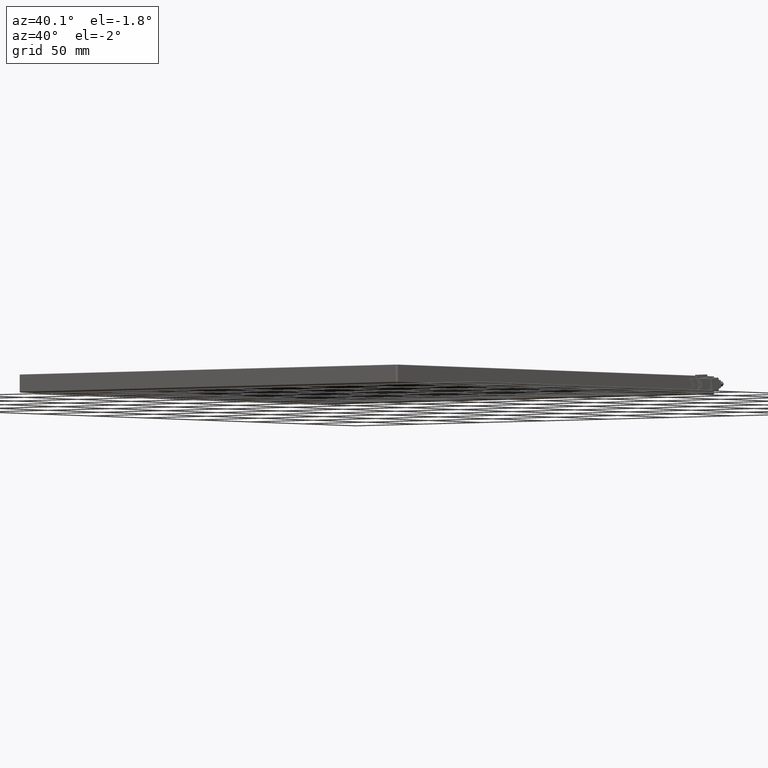
[diagram: clean part render]
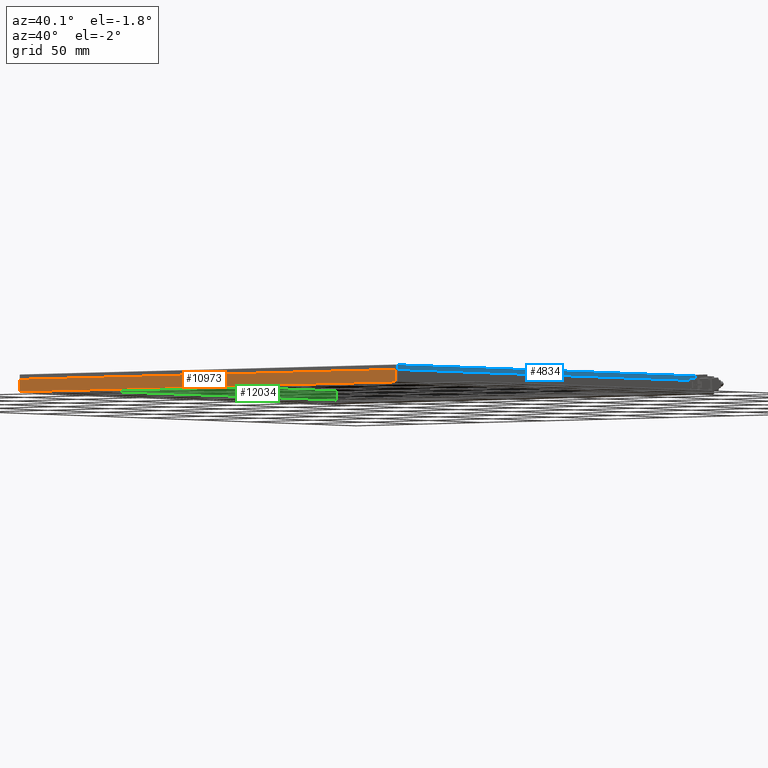
[diagram: same view with three faces highlighted in distinct colors, each labeled with its STEP entity id]
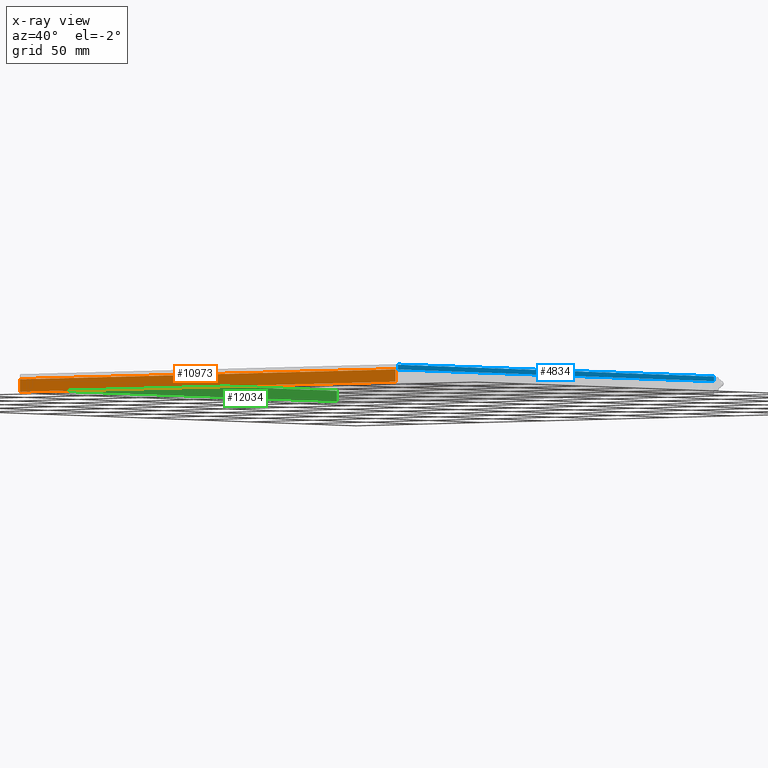
[diagram: x-ray of the same camera — body ghosted, the three highlighted faces saturated]
A machine part, auxiliary view with three faces highlighted in distinct colors.
The next image is the same camera in x-ray (body ghosted, the three faces saturated) — at least one of them is partly hidden behind the body in this view.
Their STEP definitions:

[orange] entity #10973 — the highlighted planar face has unit normal (0, 1, 0).
#39 = VERTEX_POINT ( 'NONE', #11721 ) ;
#536 = ORIENTED_EDGE ( 'NONE', *, *, #8621, .F. ) ;
#1369 = ORIENTED_EDGE ( 'NONE', *, *, #18091, .T. ) ;
#1799 = LINE ( 'NONE', #6593, #16928 ) ;
#2083 = EDGE_CURVE ( 'NONE', #15672, #17129, #12516, .T. ) ;
#2215 = DIRECTION ( 'NONE',  ( -1.000000000000000000, 0.0000000000000000000, -0.0000000000000000000 ) ) ;
#3235 = CARTESIAN_POINT ( 'NONE',  ( 119.2726522842640100, -110.5461928934010600, -2.500000000000069700 ) ) ;
#4533 = LINE ( 'NONE', #10989, #7926 ) ;
#4767 = FACE_OUTER_BOUND ( 'NONE', #12832, .T. ) ;
#4927 = VECTOR ( 'NONE', #11149, 1000.000000000000000 ) ;
#5720 = DIRECTION ( 'NONE',  ( 0.0000000000000000000, 1.000000000000000000, 0.0000000000000000000 ) ) ;
#6593 = CARTESIAN_POINT ( 'NONE',  ( -178.7273477157360400, -110.5461928934010600, 4.999999999999931600 ) ) ;
#6723 = ORIENTED_EDGE ( 'NONE', *, *, #2083, .F. ) ;
#6990 = CARTESIAN_POINT ( 'NONE',  ( -178.7273477157360400, -110.5461928934010700, -2.500000000000066600 ) ) ;
#7769 = AXIS2_PLACEMENT_3D ( 'NONE', #14509, #5720, #16010 ) ;
#7926 = VECTOR ( 'NONE', #2215, 1000.000000000000000 ) ;
#7976 = VERTEX_POINT ( 'NONE', #8748 ) ;
#8579 = VECTOR ( 'NONE', #13313, 1000.000000000000000 ) ;
#8597 = PLANE ( 'NONE',  #7769 ) ;
#8621 = EDGE_CURVE ( 'NONE', #7976, #15672, #16635, .T. ) ;
#8748 = CARTESIAN_POINT ( 'NONE',  ( 119.2726522842639000, -110.5461928934010600, 4.999999999999931600 ) ) ;
#9867 = ORIENTED_EDGE ( 'NONE', *, *, #13656, .F. ) ;
#10973 = ADVANCED_FACE ( 'NONE', ( #4767 ), #8597, .F. ) ;
#10989 = CARTESIAN_POINT ( 'NONE',  ( -179.7273477157360400, -110.5461928934010600, 4.999999999999931600 ) ) ;
#11149 = DIRECTION ( 'NONE',  ( -0.0000000000000000000, 0.0000000000000000000, -1.000000000000000000 ) ) ;
#11721 = CARTESIAN_POINT ( 'NONE',  ( -178.7273477157360400, -110.5461928934010600, 4.999999999999931600 ) ) ;
#12516 = LINE ( 'NONE', #15916, #8579 ) ;
#12539 = DIRECTION ( 'NONE',  ( 0.0000000000000000000, -0.0000000000000000000, 1.000000000000000000 ) ) ;
#12832 = EDGE_LOOP ( 'NONE', ( #6723, #536, #1369, #9867 ) ) ;
#13313 = DIRECTION ( 'NONE',  ( -1.000000000000000000, -0.0000000000000000000, -0.0000000000000000000 ) ) ;
#13656 = EDGE_CURVE ( 'NONE', #17129, #39, #1799, .T. ) ;
#14509 = CARTESIAN_POINT ( 'NONE',  ( -179.7273477157360400, -110.5461928934010600, 4.999999999999931600 ) ) ;
#15611 = CARTESIAN_POINT ( 'NONE',  ( 119.2726522842639000, -110.5461928934010600, 4.999999999999931600 ) ) ;
#15672 = VERTEX_POINT ( 'NONE', #3235 ) ;
#15916 = CARTESIAN_POINT ( 'NONE',  ( -179.7273477157360400, -110.5461928934010600, -2.500000000000067900 ) ) ;
#16010 = DIRECTION ( 'NONE',  ( 0.0000000000000000000, -0.0000000000000000000, 1.000000000000000000 ) ) ;
#16635 = LINE ( 'NONE', #15611, #4927 ) ;
#16928 = VECTOR ( 'NONE', #12539, 1000.000000000000000 ) ;
#17129 = VERTEX_POINT ( 'NONE', #6990 ) ;
#18091 = EDGE_CURVE ( 'NONE', #7976, #39, #4533, .T. ) ;

[blue] entity #4834 — the highlighted planar face has unit normal (-1, 0, 0).
#1783 = VERTEX_POINT ( 'NONE', #2713 ) ;
#1891 = ORIENTED_EDGE ( 'NONE', *, *, #15792, .F. ) ;
#1893 = CARTESIAN_POINT ( 'NONE',  ( 120.2726522842639600, -109.5461928934011600, 7.799999999999952700 ) ) ;
#2488 = FACE_OUTER_BOUND ( 'NONE', #11494, .T. ) ;
#2610 = ORIENTED_EDGE ( 'NONE', *, *, #17205, .F. ) ;
#2713 = CARTESIAN_POINT ( 'NONE',  ( 120.2726522842640100, 188.4538071065987900, 7.799999999999955400 ) ) ;
#3497 = PLANE ( 'NONE',  #6770 ) ;
#4241 = VERTEX_POINT ( 'NONE', #13162 ) ;
#4834 = ADVANCED_FACE ( 'NONE', ( #2488 ), #3497, .F. ) ;
#5027 = EDGE_CURVE ( 'NONE', #6834, #15723, #7701, .T. ) ;
#5265 = DIRECTION ( 'NONE',  ( -0.0000000000000000000, -1.000000000000000000, -0.0000000000000000000 ) ) ;
#5532 = DIRECTION ( 'NONE',  ( 0.0000000000000000000, 0.0000000000000000000, 1.000000000000000000 ) ) ;
#6105 = LINE ( 'NONE', #9607, #9535 ) ;
#6516 = DIRECTION ( 'NONE',  ( -1.000000000000000000, 0.0000000000000000000, 0.0000000000000000000 ) ) ;
#6770 = AXIS2_PLACEMENT_3D ( 'NONE', #15325, #6516, #16827 ) ;
#6834 = VERTEX_POINT ( 'NONE', #19053 ) ;
#7147 = LINE ( 'NONE', #12338, #10645 ) ;
#7246 = DIRECTION ( 'NONE',  ( -0.0000000000000000000, -0.0000000000000000000, -1.000000000000000000 ) ) ;
#7701 = LINE ( 'NONE', #14329, #15517 ) ;
#7730 = LINE ( 'NONE', #17588, #11683 ) ;
#7863 = DIRECTION ( 'NONE',  ( 0.0000000000000000000, 1.000000000000000000, -0.0000000000000000000 ) ) ;
#9535 = VECTOR ( 'NONE', #5265, 1000.000000000000000 ) ;
#9607 = CARTESIAN_POINT ( 'NONE',  ( 120.2726522842639600, 189.4538071065989000, 4.999999999999931600 ) ) ;
#10645 = VECTOR ( 'NONE', #7863, 1000.000000000000000 ) ;
#11494 = EDGE_LOOP ( 'NONE', ( #1891, #12550, #14491, #2610 ) ) ;
#11683 = VECTOR ( 'NONE', #7246, 1000.000000000000000 ) ;
#12338 = CARTESIAN_POINT ( 'NONE',  ( 120.2726522842639600, -110.5461928934010800, 7.799999999999953600 ) ) ;
#12550 = ORIENTED_EDGE ( 'NONE', *, *, #5027, .F. ) ;
#13162 = CARTESIAN_POINT ( 'NONE',  ( 120.2726522842639600, 188.4538071065987900, 4.999999999999929800 ) ) ;
#14329 = CARTESIAN_POINT ( 'NONE',  ( 120.2726522842639600, -109.5461928934010800, 7.999999999999930700 ) ) ;
#14491 = ORIENTED_EDGE ( 'NONE', *, *, #18189, .F. ) ;
#15325 = CARTESIAN_POINT ( 'NONE',  ( 120.2726522842639600, -110.5461928934010800, 7.999999999999930700 ) ) ;
#15517 = VECTOR ( 'NONE', #5532, 1000.000000000000000 ) ;
#15723 = VERTEX_POINT ( 'NONE', #1893 ) ;
#15792 = EDGE_CURVE ( 'NONE', #15723, #1783, #7147, .T. ) ;
#16827 = DIRECTION ( 'NONE',  ( 0.0000000000000000000, 0.0000000000000000000, 1.000000000000000000 ) ) ;
#17205 = EDGE_CURVE ( 'NONE', #1783, #4241, #7730, .T. ) ;
#17588 = CARTESIAN_POINT ( 'NONE',  ( 120.2726522842639600, 188.4538071065987900, 7.999999999999930700 ) ) ;
#18189 = EDGE_CURVE ( 'NONE', #4241, #6834, #6105, .T. ) ;
#19053 = CARTESIAN_POINT ( 'NONE',  ( 120.2726522842640100, -109.5461928934011000, 4.999999999999929800 ) ) ;

[green] entity #12034 — the highlighted planar face has unit normal (-1, -0, 0).
#476 = ORIENTED_EDGE ( 'NONE', *, *, #14442, .F. ) ;
#1512 = ORIENTED_EDGE ( 'NONE', *, *, #15610, .F. ) ;
#2270 = LINE ( 'NONE', #18005, #2732 ) ;
#2337 = DIRECTION ( 'NONE',  ( -0.0000000000000000000, -0.0000000000000000000, -1.000000000000000000 ) ) ;
#2732 = VECTOR ( 'NONE', #4777, 1000.000000000000000 ) ;
#2868 = VECTOR ( 'NONE', #9400, 1000.000000000000000 ) ;
#3241 = CARTESIAN_POINT ( 'NONE',  ( -175.7273477157360400, 184.4538071065989300, -1.200000000000067900 ) ) ;
#3492 = CARTESIAN_POINT ( 'NONE',  ( -175.7273477157360200, -105.5461928934010400, -1.200000000000067900 ) ) ;
#4409 = EDGE_CURVE ( 'NONE', #11519, #4664, #9156, .T. ) ;
#4664 = VERTEX_POINT ( 'NONE', #3241 ) ;
#4732 = EDGE_CURVE ( 'NONE', #11519, #15579, #2270, .T. ) ;
#4777 = DIRECTION ( 'NONE',  ( -0.0000000000000000000, -1.000000000000000000, -0.0000000000000000000 ) ) ;
#4852 = ORIENTED_EDGE ( 'NONE', *, *, #4409, .F. ) ;
#5009 = CARTESIAN_POINT ( 'NONE',  ( -175.7273477157360200, -105.5461928934010400, -1.200000000000067900 ) ) ;
#5162 = AXIS2_PLACEMENT_3D ( 'NONE', #5820, #16117, #7262 ) ;
#5252 = VECTOR ( 'NONE', #2337, 1000.000000000000000 ) ;
#5820 = CARTESIAN_POINT ( 'NONE',  ( -175.7273477157360400, 185.4538071065989300, -1.200000000000067900 ) ) ;
#6039 = DIRECTION ( 'NONE',  ( -0.0000000000000000000, -1.000000000000000000, 0.0000000000000000000 ) ) ;
#6527 = VECTOR ( 'NONE', #6039, 1000.000000000000000 ) ;
#6717 = LINE ( 'NONE', #5009, #2868 ) ;
#7262 = DIRECTION ( 'NONE',  ( 1.158462595258484500E-016, -1.000000000000000000, 0.0000000000000000000 ) ) ;
#9156 = LINE ( 'NONE', #11113, #5252 ) ;
#9400 = DIRECTION ( 'NONE',  ( 0.0000000000000000000, 0.0000000000000000000, 1.000000000000000000 ) ) ;
#10764 = CARTESIAN_POINT ( 'NONE',  ( -175.7273477157360200, -105.5461928934010400, 4.999999999999931600 ) ) ;
#11113 = CARTESIAN_POINT ( 'NONE',  ( -175.7273477157360400, 184.4538071065989300, -1.200000000000067900 ) ) ;
#11519 = VERTEX_POINT ( 'NONE', #15571 ) ;
#11929 = VERTEX_POINT ( 'NONE', #3492 ) ;
#12034 = ADVANCED_FACE ( 'NONE', ( #12470 ), #13105, .F. ) ;
#12470 = FACE_OUTER_BOUND ( 'NONE', #17133, .T. ) ;
#13105 = PLANE ( 'NONE',  #5162 ) ;
#14442 = EDGE_CURVE ( 'NONE', #4664, #11929, #17838, .T. ) ;
#15340 = ORIENTED_EDGE ( 'NONE', *, *, #4732, .T. ) ;
#15571 = CARTESIAN_POINT ( 'NONE',  ( -175.7273477157360400, 184.4538071065989300, 4.999999999999931600 ) ) ;
#15579 = VERTEX_POINT ( 'NONE', #10764 ) ;
#15610 = EDGE_CURVE ( 'NONE', #11929, #15579, #6717, .T. ) ;
#16117 = DIRECTION ( 'NONE',  ( -1.000000000000000000, -1.158462595258484500E-016, 0.0000000000000000000 ) ) ;
#17133 = EDGE_LOOP ( 'NONE', ( #1512, #476, #4852, #15340 ) ) ;
#17838 = LINE ( 'NONE', #17892, #6527 ) ;
#17892 = CARTESIAN_POINT ( 'NONE',  ( -175.7273477157360400, -106.5461928934010400, -1.200000000000067900 ) ) ;
#18005 = CARTESIAN_POINT ( 'NONE',  ( -175.7273477157360400, 189.4538071065989300, 4.999999999999931600 ) ) ;